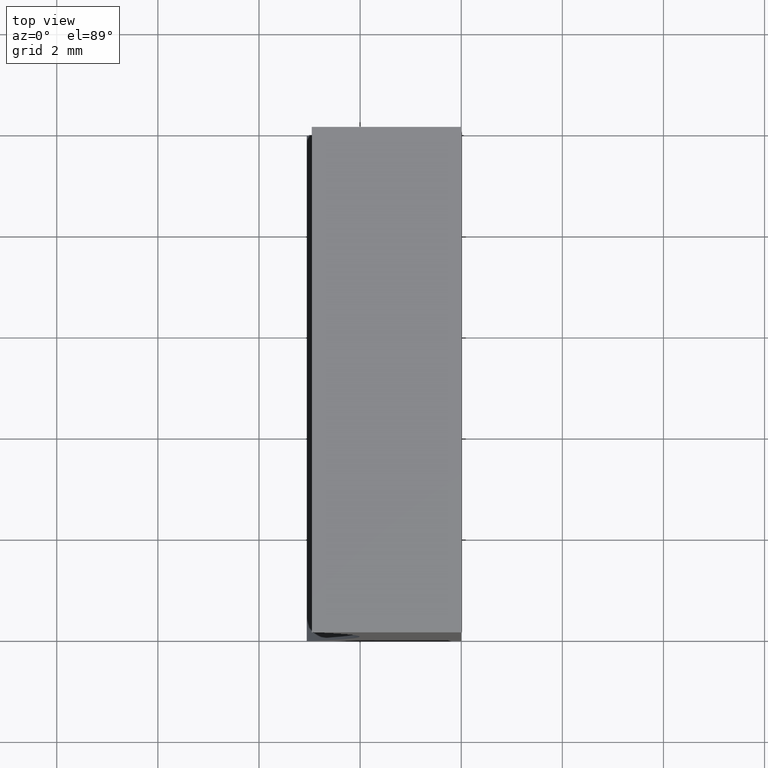
[diagram: clean part render]
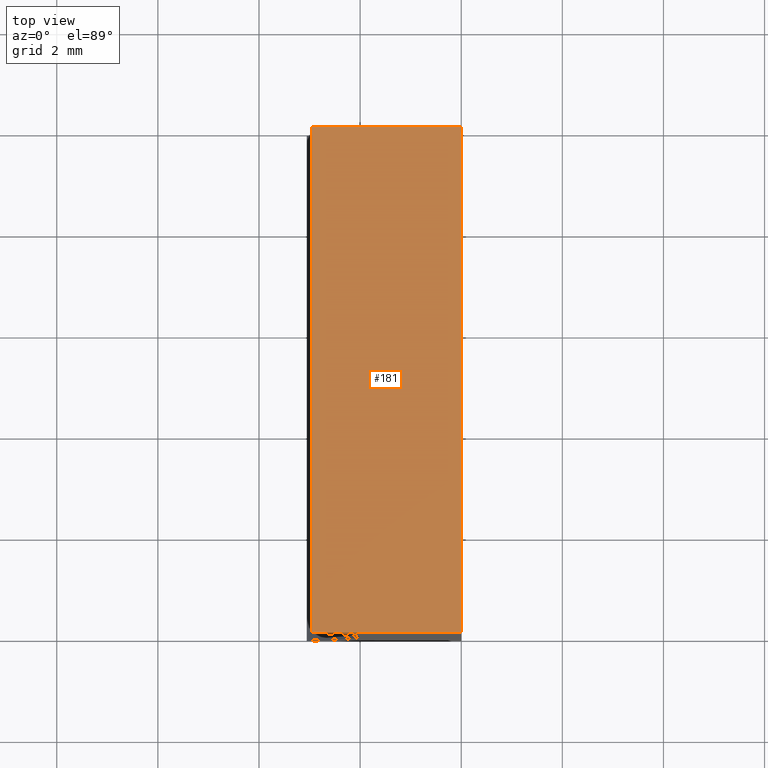
[diagram: same view with one face highlighted and labeled with its STEP entity id]
A machine part, top view. The second image highlights one B-rep face of the part: STEP entity #181.
In plain terms, the highlighted planar face has unit normal (0, 0, -1).
Its self-contained STEP definition (entity closure, byte-faithful):
#5 = CARTESIAN_POINT ( 'NONE',  ( 6.123233995736766300E-016, 0.0000000000000000000, 10.00000000000000000 ) ) ;
#11 = VECTOR ( 'NONE', #195, 1000.000000000000000 ) ;
#13 = EDGE_CURVE ( 'NONE', #22, #166, #96, .T. ) ;
#21 = FACE_OUTER_BOUND ( 'NONE', #33, .T. ) ;
#22 = VERTEX_POINT ( 'NONE', #40 ) ;
#24 = AXIS2_PLACEMENT_3D ( 'NONE', #153, #89, #164 ) ;
#29 = CARTESIAN_POINT ( 'NONE',  ( -2.957014408104902800, 10.00000000000000000, 10.00000000000000000 ) ) ;
#30 = PLANE ( 'NONE',  #24 ) ;
#33 = EDGE_LOOP ( 'NONE', ( #65, #60, #146, #191 ) ) ;
#38 = VECTOR ( 'NONE', #61, 1000.000000000000000 ) ;
#40 = CARTESIAN_POINT ( 'NONE',  ( -2.957014408104902800, 10.00000000000000000, 10.00000000000000000 ) ) ;
#43 = VECTOR ( 'NONE', #44, 1000.000000000000000 ) ;
#44 = DIRECTION ( 'NONE',  ( 1.000000000000000000, -0.0000000000000000000, -0.0000000000000000000 ) ) ;
#46 = CARTESIAN_POINT ( 'NONE',  ( 6.123233995736766300E-016, 10.00000000000000000, 10.00000000000000000 ) ) ;
#60 = ORIENTED_EDGE ( 'NONE', *, *, #149, .F. ) ;
#61 = DIRECTION ( 'NONE',  ( -0.0000000000000000000, -1.000000000000000000, -0.0000000000000000000 ) ) ;
#62 = CARTESIAN_POINT ( 'NONE',  ( -2.957014408104902800, 0.0000000000000000000, 10.00000000000000000 ) ) ;
#65 = ORIENTED_EDGE ( 'NONE', *, *, #85, .T. ) ;
#76 = VECTOR ( 'NONE', #78, 1000.000000000000000 ) ;
#78 = DIRECTION ( 'NONE',  ( 1.000000000000000000, -0.0000000000000000000, -0.0000000000000000000 ) ) ;
#85 = EDGE_CURVE ( 'NONE', #155, #129, #196, .T. ) ;
#89 = DIRECTION ( 'NONE',  ( 0.0000000000000000000, 0.0000000000000000000, -1.000000000000000000 ) ) ;
#94 = LINE ( 'NONE', #142, #38 ) ;
#96 = LINE ( 'NONE', #204, #43 ) ;
#111 = CARTESIAN_POINT ( 'NONE',  ( 6.123233995736766300E-016, 0.0000000000000000000, 10.00000000000000000 ) ) ;
#129 = VERTEX_POINT ( 'NONE', #111 ) ;
#142 = CARTESIAN_POINT ( 'NONE',  ( 6.123233995736766300E-016, 10.00000000000000000, 10.00000000000000000 ) ) ;
#146 = ORIENTED_EDGE ( 'NONE', *, *, #13, .F. ) ;
#149 = EDGE_CURVE ( 'NONE', #166, #129, #94, .T. ) ;
#150 = LINE ( 'NONE', #29, #11 ) ;
#153 = CARTESIAN_POINT ( 'NONE',  ( 6.123233995736766300E-016, 10.00000000000000000, 10.00000000000000000 ) ) ;
#155 = VERTEX_POINT ( 'NONE', #62 ) ;
#164 = DIRECTION ( 'NONE',  ( -1.000000000000000000, 0.0000000000000000000, -0.0000000000000000000 ) ) ;
#166 = VERTEX_POINT ( 'NONE', #46 ) ;
#180 = EDGE_CURVE ( 'NONE', #22, #155, #150, .T. ) ;
#181 = ADVANCED_FACE ( 'NONE', ( #21 ), #30, .F. ) ;
#191 = ORIENTED_EDGE ( 'NONE', *, *, #180, .T. ) ;
#195 = DIRECTION ( 'NONE',  ( -0.0000000000000000000, -1.000000000000000000, -0.0000000000000000000 ) ) ;
#196 = LINE ( 'NONE', #5, #76 ) ;
#204 = CARTESIAN_POINT ( 'NONE',  ( 6.123233995736766300E-016, 10.00000000000000000, 10.00000000000000000 ) ) ;